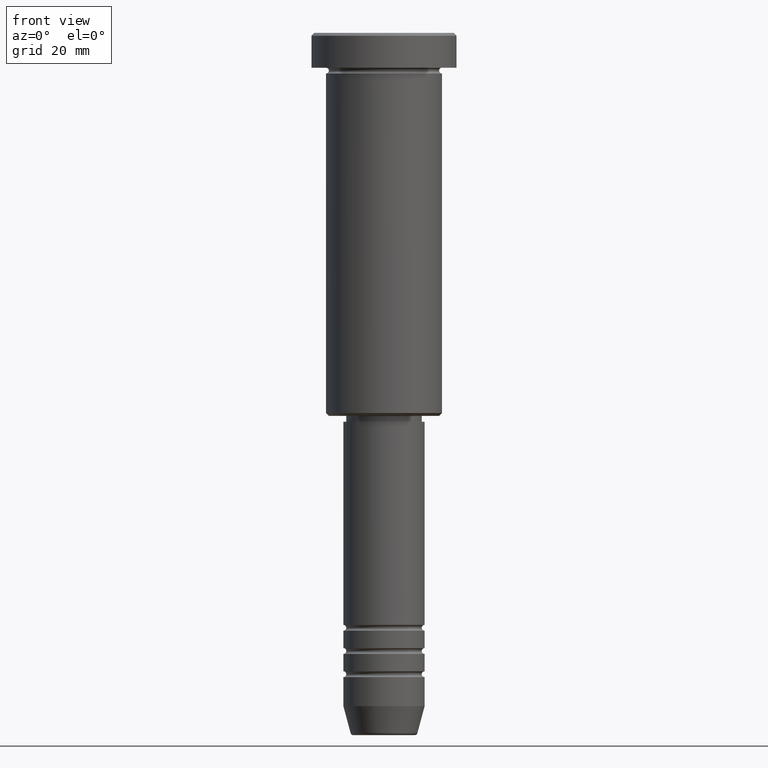
[diagram: clean part render]
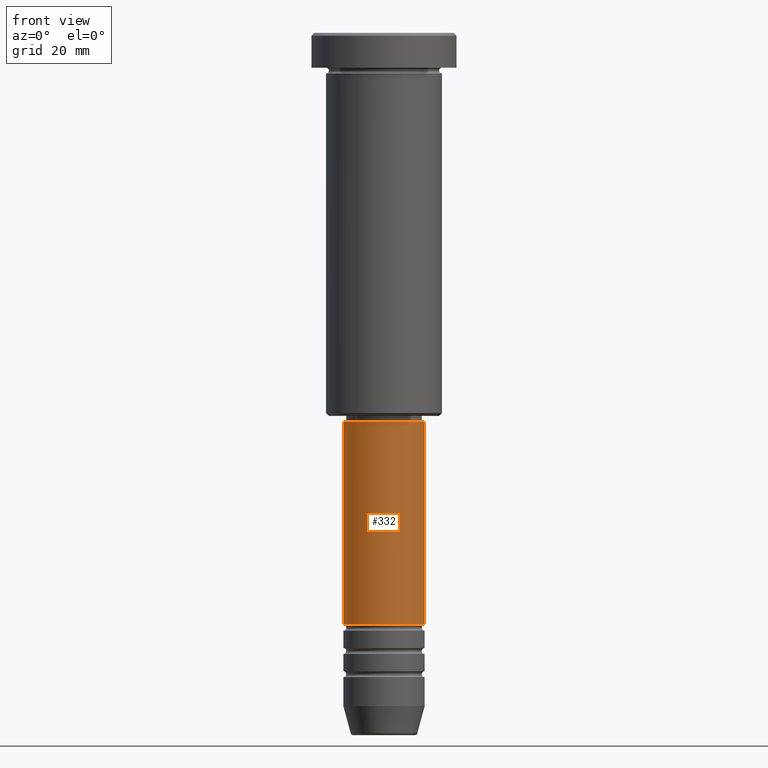
[diagram: same view with one face highlighted and labeled with its STEP entity id]
A machine part, front view. The second image highlights one B-rep face of the part: STEP entity #332.
In plain terms, the highlighted cylindrical surface (partial cylindrical patch) has radius 7 mm, axis along (-0, -0, 1).
Its self-contained STEP definition (entity closure, byte-faithful):
#12 = EDGE_CURVE ( 'NONE', #527, #369, #445, .T. ) ;
#101 = CARTESIAN_POINT ( 'NONE',  ( -7.000000000000000888, 8.572527594031474176E-16, 0.000000000000000000 ) ) ;
#115 = DIRECTION ( 'NONE',  ( 1.000000000000000000, 0.000000000000000000, 0.000000000000000000 ) ) ;
#131 = EDGE_CURVE ( 'NONE', #527, #1034, #726, .T. ) ;
#167 = AXIS2_PLACEMENT_3D ( 'NONE', #1049, #644, #115 ) ;
#182 = DIRECTION ( 'NONE',  ( -0.000000000000000000, -0.000000000000000000, 1.000000000000000000 ) ) ;
#193 = EDGE_CURVE ( 'NONE', #369, #795, #439, .T. ) ;
#267 = CYLINDRICAL_SURFACE ( 'NONE', #749, 7.000000000000000888 ) ;
#271 = DIRECTION ( 'NONE',  ( 1.000000000000000000, 0.000000000000000000, 0.000000000000000000 ) ) ;
#287 = ORIENTED_EDGE ( 'NONE', *, *, #193, .T. ) ;
#332 = ADVANCED_FACE ( 'NONE', ( #541 ), #267, .T. ) ;
#339 = ORIENTED_EDGE ( 'NONE', *, *, #1096, .F. ) ;
#369 = VERTEX_POINT ( 'NONE', #723 ) ;
#433 = DIRECTION ( 'NONE',  ( -0.000000000000000000, -0.000000000000000000, 1.000000000000000000 ) ) ;
#439 = LINE ( 'NONE', #635, #883 ) ;
#445 = CIRCLE ( 'NONE', #167, 7.000000000000000888 ) ;
#488 = CARTESIAN_POINT ( 'NONE',  ( -7.000000000000000888, 8.572527594031474176E-16, -101.9999999999999005 ) ) ;
#527 = VERTEX_POINT ( 'NONE', #488 ) ;
#541 = FACE_OUTER_BOUND ( 'NONE', #906, .T. ) ;
#554 = CARTESIAN_POINT ( 'NONE',  ( -7.000000000000000888, 8.572527594031474176E-16, -67.00000000000002842 ) ) ;
#577 = VECTOR ( 'NONE', #934, 1000.000000000000000 ) ;
#603 = CARTESIAN_POINT ( 'NONE',  ( 7.000000000000000888, 0.000000000000000000, -67.00000000000002842 ) ) ;
#635 = CARTESIAN_POINT ( 'NONE',  ( 7.000000000000000888, 0.000000000000000000, 0.000000000000000000 ) ) ;
#644 = DIRECTION ( 'NONE',  ( -0.000000000000000000, -0.000000000000000000, 1.000000000000000000 ) ) ;
#723 = CARTESIAN_POINT ( 'NONE',  ( 7.000000000000000888, 0.000000000000000000, -101.9999999999999005 ) ) ;
#726 = LINE ( 'NONE', #101, #577 ) ;
#749 = AXIS2_PLACEMENT_3D ( 'NONE', #807, #916, #825 ) ;
#795 = VERTEX_POINT ( 'NONE', #603 ) ;
#807 = CARTESIAN_POINT ( 'NONE',  ( 0.000000000000000000, 0.000000000000000000, 0.000000000000000000 ) ) ;
#816 = ORIENTED_EDGE ( 'NONE', *, *, #12, .T. ) ;
#825 = DIRECTION ( 'NONE',  ( 1.000000000000000000, 0.000000000000000000, 0.000000000000000000 ) ) ;
#883 = VECTOR ( 'NONE', #433, 1000.000000000000000 ) ;
#906 = EDGE_LOOP ( 'NONE', ( #1031, #816, #287, #339 ) ) ;
#916 = DIRECTION ( 'NONE',  ( -0.000000000000000000, -0.000000000000000000, 1.000000000000000000 ) ) ;
#927 = CIRCLE ( 'NONE', #1089, 7.000000000000000888 ) ;
#934 = DIRECTION ( 'NONE',  ( -0.000000000000000000, -0.000000000000000000, 1.000000000000000000 ) ) ;
#961 = CARTESIAN_POINT ( 'NONE',  ( 0.000000000000000000, 0.000000000000000000, -67.00000000000002842 ) ) ;
#1031 = ORIENTED_EDGE ( 'NONE', *, *, #131, .F. ) ;
#1034 = VERTEX_POINT ( 'NONE', #554 ) ;
#1049 = CARTESIAN_POINT ( 'NONE',  ( 0.000000000000000000, 0.000000000000000000, -101.9999999999999005 ) ) ;
#1089 = AXIS2_PLACEMENT_3D ( 'NONE', #961, #182, #271 ) ;
#1096 = EDGE_CURVE ( 'NONE', #1034, #795, #927, .T. ) ;